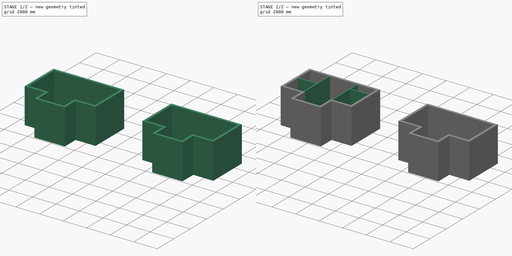
[diagram: build sequence overview — one tinted view per stage of 2, left to right]
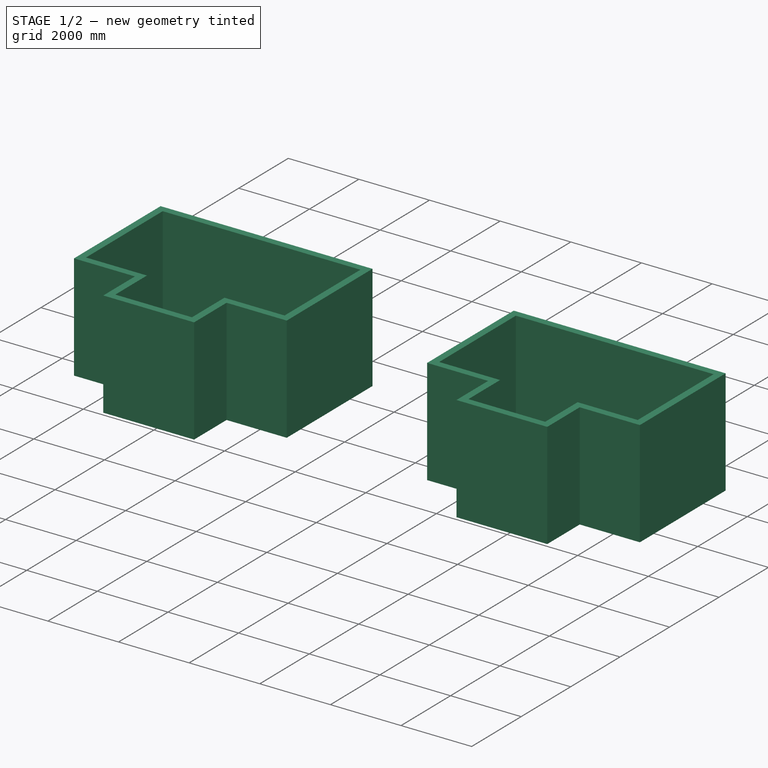
[diagram: stage 1 of 2 — iso view after this stage's code; geometry added in this stage tinted green]
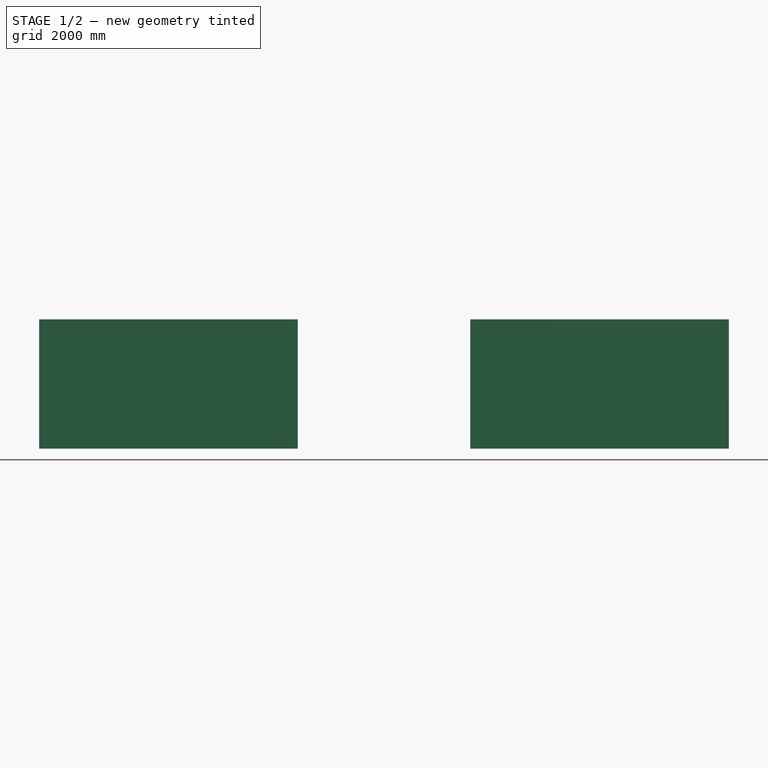
[diagram: stage 1 of 2 — front view after this stage's code; geometry added in this stage tinted green]
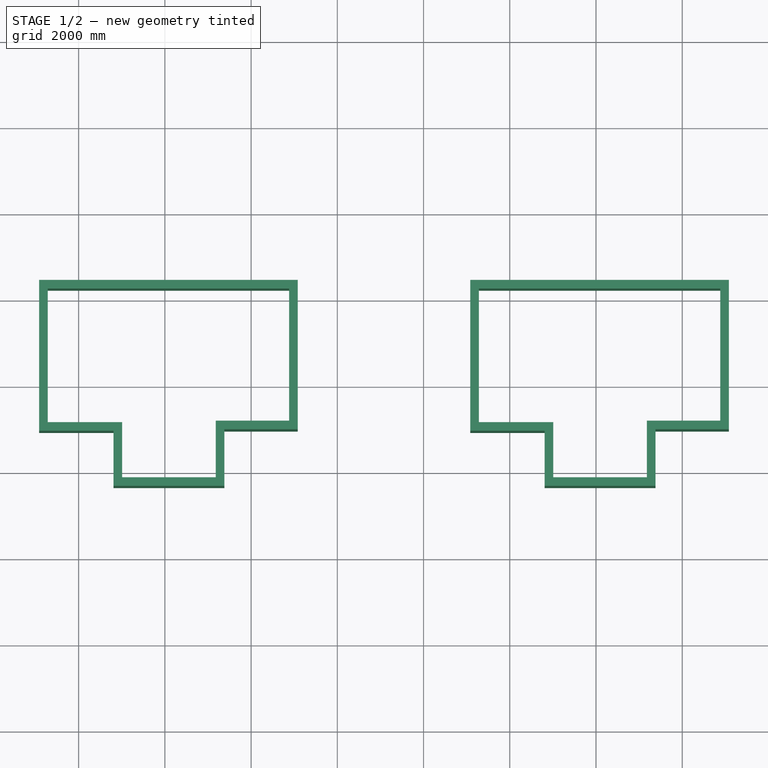
[diagram: stage 1 of 2 — top view after this stage's code; geometry added in this stage tinted green]
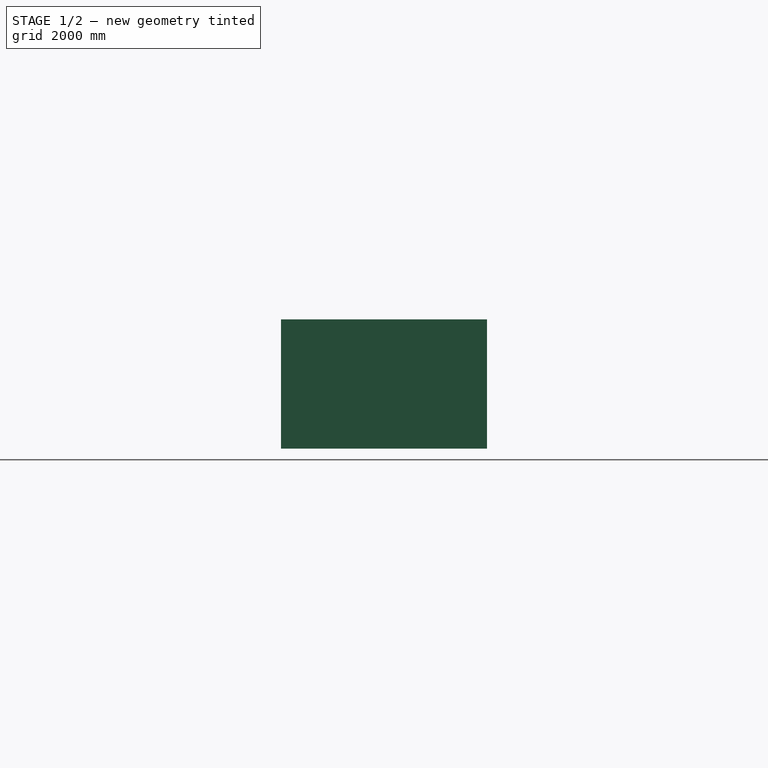
[diagram: stage 1 of 2 — right view after this stage's code; geometry added in this stage tinted green]
FCSTD DOCUMENT  (FreeCAD 0.18R4 (GitTag))
Label: WallExperiment
License: All rights reserved
LicenseURL: http://en.wikipedia.org/wiki/All_rights_reserved
objects: Sketcher::SketchObject×4, Part::FeaturePython×3
note: 7 computed .brp shape members not serialized (recipe doc carries the construction recipe); baked Part::Feature solids carry a one-line shape summary decoded from their .brp

FEATURE [Sketcher::SketchObject] Sketch
  MapMode = 5
  sketch-geometry (8):
    g0: LineSegment StartX=-2817.02 StartY=-965.032 StartZ=0 EndX=-2817.02 EndY=2336.23 EndZ=0
    g1: LineSegment StartX=-2817.02 StartY=2336.23 StartZ=0 EndX=2982.5 EndY=2336.23 EndZ=0
    g2: LineSegment StartX=2982.5 StartY=2336.23 StartZ=0 EndX=2982.5 EndY=-931.062 EndZ=0
    g3: LineSegment StartX=2982.5 StartY=-931.062 StartZ=0 EndX=1279.13 EndY=-931.062 EndZ=0
    g4: LineSegment StartX=1279.13 StartY=-931.062 StartZ=0 EndX=1279.13 EndY=-2243.9 EndZ=0
    g5: LineSegment StartX=1279.13 StartY=-2243.9 StartZ=0 EndX=-1092.04 EndY=-2243.9 EndZ=0
    g6: LineSegment StartX=-1092.04 StartY=-2243.9 StartZ=0 EndX=-1092.04 EndY=-965.032 EndZ=0
    g7: LineSegment StartX=-1092.04 StartY=-965.032 StartZ=0 EndX=-2817.02 EndY=-965.032 EndZ=0
  constraints (16):
    c: Coincident(g0,g1)
    c: Coincident(g1,g2)
    c: Coincident(g2,g3)
    c: Coincident(g3,g4)
    c: Coincident(g4,g5)
    c: Coincident(g5,g6)
    c: Coincident(g6,g7)
    c: Coincident(g7,g0)
    c: Vertical(g0)
    c: Vertical(g2)
    c: Vertical(g4)
    c: Vertical(g6)
    c: Horizontal(g7)
    c: Horizontal(g5)
    c: Horizontal(g3)
    c: Horizontal(g1)
FEATURE [Part::FeaturePython] Wall  # Arch/BIM object (typed FeaturePython)
  Align = 2
  Base = -> Sketch
  BlockHeight = 0
  BlockLength = 0
  CountBroken = 0
  CountEntire = 0
  Face = 0
  Height = 3000
  HorizontalArea = 4.15186e+06
  IfcRole = 156
  Joint = 0
  Length = 20759.3
  MakeBlocks = false
  MoveWithHost = false
  Normal = (0,0,0)
  OffsetFirst = 0
  OffsetSecond = 0
  PerimeterLength = 21559.3
  VerticalArea = 1.24556e+08
  Width = 200
FEATURE [Sketcher::SketchObject] Sketch003
  MapMode = 5
  sketch-geometry (8):
    g0: LineSegment StartX=-2817.02 StartY=-965.032 StartZ=0 EndX=-2817.02 EndY=2336.23 EndZ=0
    g1: LineSegment StartX=-2817.02 StartY=2336.23 StartZ=0 EndX=2982.5 EndY=2336.23 EndZ=0
    g2: LineSegment StartX=2982.5 StartY=2336.23 StartZ=0 EndX=2982.5 EndY=-931.062 EndZ=0
    g3: LineSegment StartX=2982.5 StartY=-931.062 StartZ=0 EndX=1279.13 EndY=-931.062 EndZ=0
    g4: LineSegment StartX=1279.13 StartY=-931.062 StartZ=0 EndX=1279.13 EndY=-2243.9 EndZ=0
    g5: LineSegment StartX=1279.13 StartY=-2243.9 StartZ=0 EndX=-1092.04 EndY=-2243.9 EndZ=0
    g6: LineSegment StartX=-1092.04 StartY=-2243.9 StartZ=0 EndX=-1092.04 EndY=-965.032 EndZ=0
    g7: LineSegment StartX=-1092.04 StartY=-965.032 StartZ=0 EndX=-2817.02 EndY=-965.032 EndZ=0
  constraints (16):
    c: Coincident(g0,g1)
    c: Coincident(g1,g2)
    c: Coincident(g2,g3)
    c: Coincident(g3,g4)
    c: Coincident(g4,g5)
    c: Coincident(g5,g6)
    c: Coincident(g6,g7)
    c: Coincident(g7,g0)
    c: Vertical(g0)
    c: Vertical(g2)
    c: Vertical(g4)
    c: Vertical(g6)
    c: Horizontal(g7)
    c: Horizontal(g5)
    c: Horizontal(g3)
    c: Horizontal(g1)
FEATURE [Part::FeaturePython] Wall002  # Arch/BIM object (typed FeaturePython)
  Align = 2
  Base = -> Sketch003
  BlockHeight = 0
  BlockLength = 0
  CountBroken = 0
  CountEntire = 0
  Face = 0
  Height = 3000
  HorizontalArea = 4.15186e+06
  IfcRole = 156
  Joint = 0
  Length = 20759.3
  MakeBlocks = false
  MoveWithHost = false
  Normal = (0,0,0)
  OffsetFirst = 0
  OffsetSecond = 0
  PerimeterLength = 21559.3
  Placement = pos=(10000,0,0) rot=(0,0,1;0rad)
  VerticalArea = 1.24556e+08
  Width = 200
FEATURE [Sketcher::SketchObject] Sketch002
  ExternalGeometry = -> [Sketch003]
  MapMode = 2
  Support = -> [Sketch003]
  sketch-geometry (4):
    g0: LineSegment StartX=1279.13 StartY=-931.062 StartZ=0 EndX=1279.13 EndY=2336.23 EndZ=0
    g1: LineSegment StartX=-1092.04 StartY=-965.032 StartZ=0 EndX=-1092.04 EndY=2336.23 EndZ=0
    g2: LineSegment StartX=1279.13 StartY=1369.13 StartZ=0 EndX=2982.5 EndY=1369.13 EndZ=0
    g3: LineSegment StartX=-2817.02 StartY=754.718 StartZ=0 EndX=-1092.04 EndY=754.718 EndZ=0
  constraints (12):
    c: Vertical(g0)
    c: PointOnObject(g0,g-5)
    c: Coincident(g0,g-6)
    c: PointOnObject(g1,g-5)
    c: Vertical(g1)
    c: Coincident(g1,g-7)
    c: Horizontal(g2)
    c: PointOnObject(g2,g-3)
    c: PointOnObject(g2,g0)
    c: Horizontal(g3)
    c: PointOnObject(g3,g1)
    c: PointOnObject(g3,g-4)
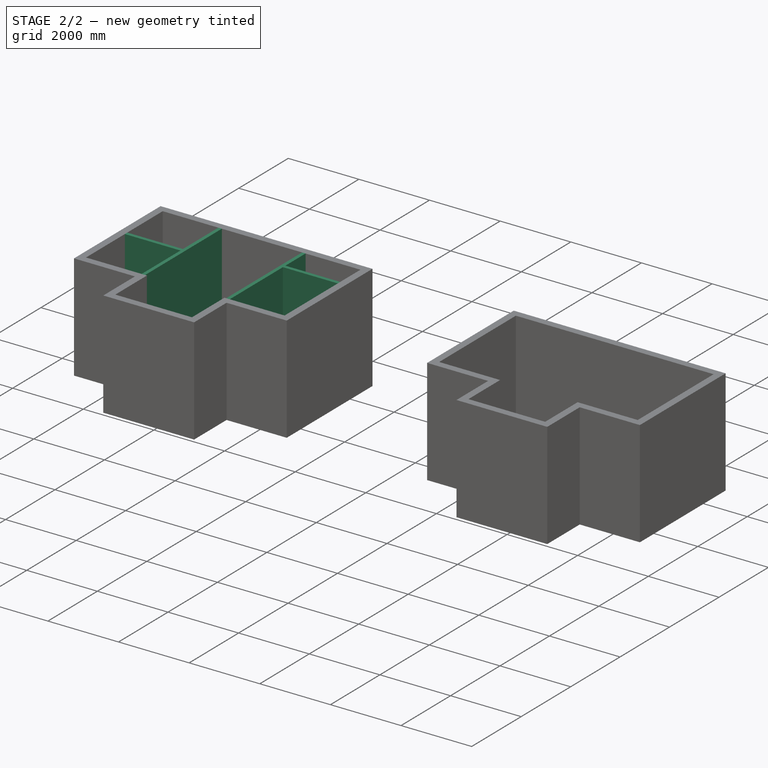
[diagram: stage 2 of 2 — iso view after this stage's code; geometry added in this stage tinted green]
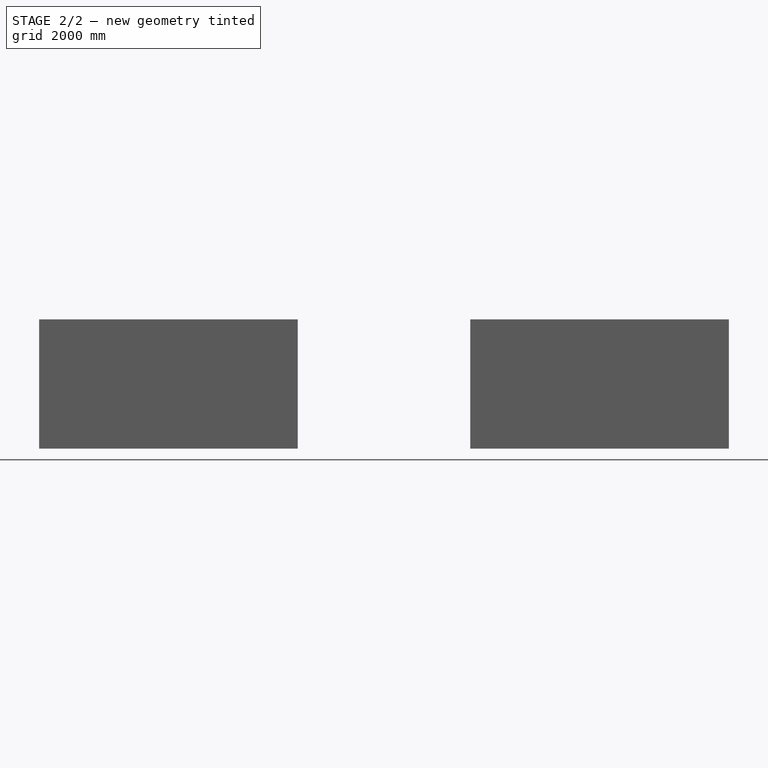
[diagram: stage 2 of 2 — front view after this stage's code; geometry added in this stage tinted green]
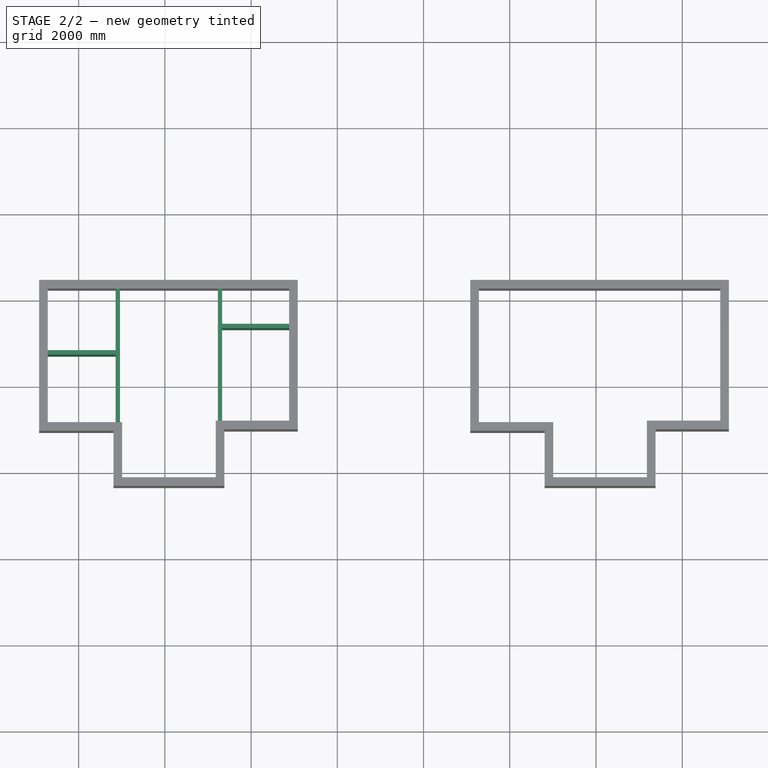
[diagram: stage 2 of 2 — top view after this stage's code; geometry added in this stage tinted green]
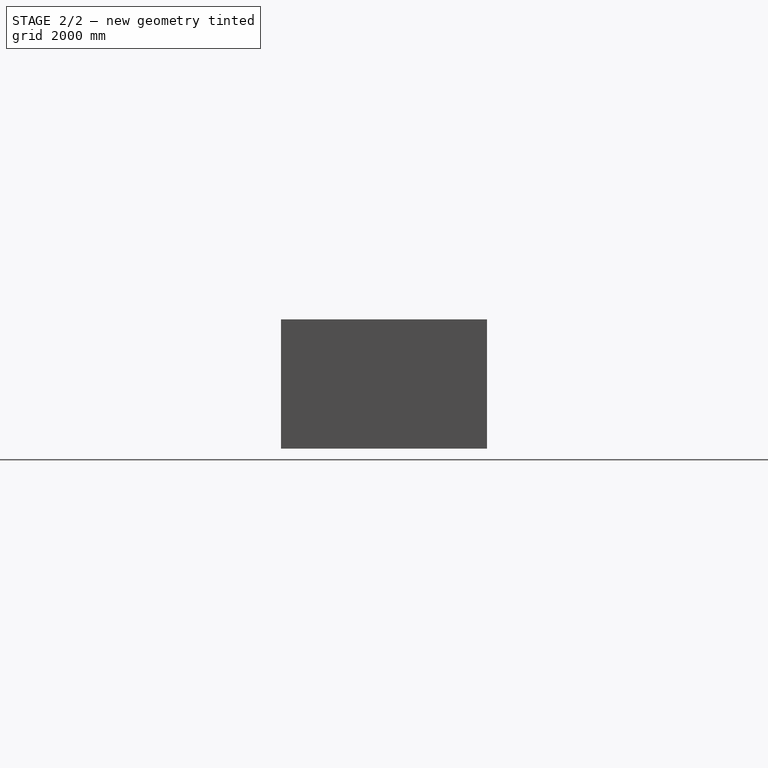
[diagram: stage 2 of 2 — right view after this stage's code; geometry added in this stage tinted green]
FEATURE [Sketcher::SketchObject] Sketch001
  ExternalGeometry = -> [Sketch]
  MapMode = 2
  Support = -> [Sketch]
  sketch-geometry (4):
    g0: LineSegment StartX=1279.13 StartY=-931.062 StartZ=0 EndX=1279.13 EndY=2336.23 EndZ=0
    g1: LineSegment StartX=-1092.04 StartY=-965.032 StartZ=0 EndX=-1092.04 EndY=2336.23 EndZ=0
    g2: LineSegment StartX=1279.13 StartY=1369.13 StartZ=0 EndX=2982.5 EndY=1369.13 EndZ=0
    g3: LineSegment StartX=-2817.02 StartY=754.718 StartZ=0 EndX=-1092.04 EndY=754.718 EndZ=0
  constraints (12):
    c: Vertical(g0)
    c: PointOnObject(g0,g-5)
    c: Coincident(g0,g-6)
    c: PointOnObject(g1,g-5)
    c: Vertical(g1)
    c: Coincident(g1,g-7)
    c: Horizontal(g2)
    c: PointOnObject(g2,g-3)
    c: PointOnObject(g2,g0)
    c: Horizontal(g3)
    c: PointOnObject(g3,g1)
    c: PointOnObject(g3,g-4)
FEATURE [Part::FeaturePython] Wall001  # Arch/BIM object (typed FeaturePython)
  Additions = -> [Wall]
  Align = 2
  Base = -> Sketch001
  BlockHeight = 0
  BlockLength = 0
  CountBroken = 0
  CountEntire = 0
  Face = 0
  Height = 3000
  HorizontalArea = 0
  IfcRole = 156
  Joint = 0
  Length = 9996.91
  MakeBlocks = false
  MoveWithHost = false
  Normal = (0,0,0)
  OffsetFirst = 0
  OffsetSecond = 0
  PerimeterLength = 0
  VerticalArea = 0
  Width = 100
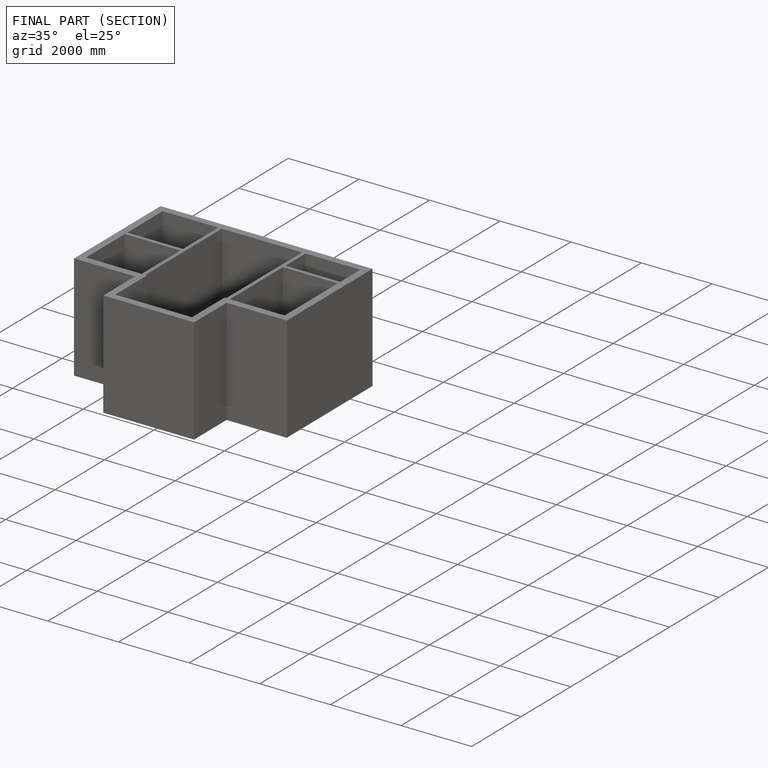
[diagram: finished part — half-section view (interior)]
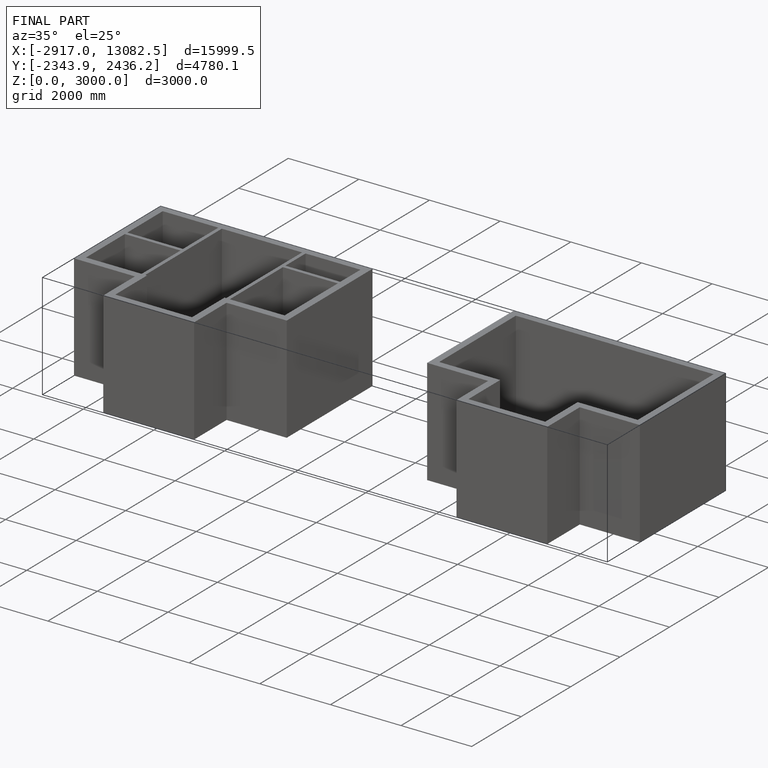
[diagram: finished part — iso view with bounding-box wireframe]
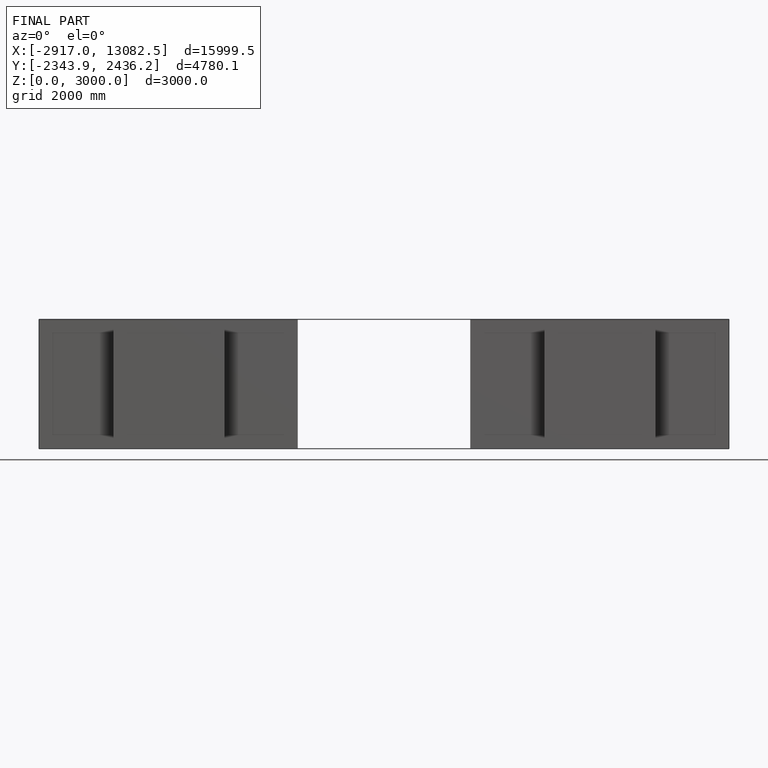
[diagram: finished part — front view with bounding-box wireframe]
